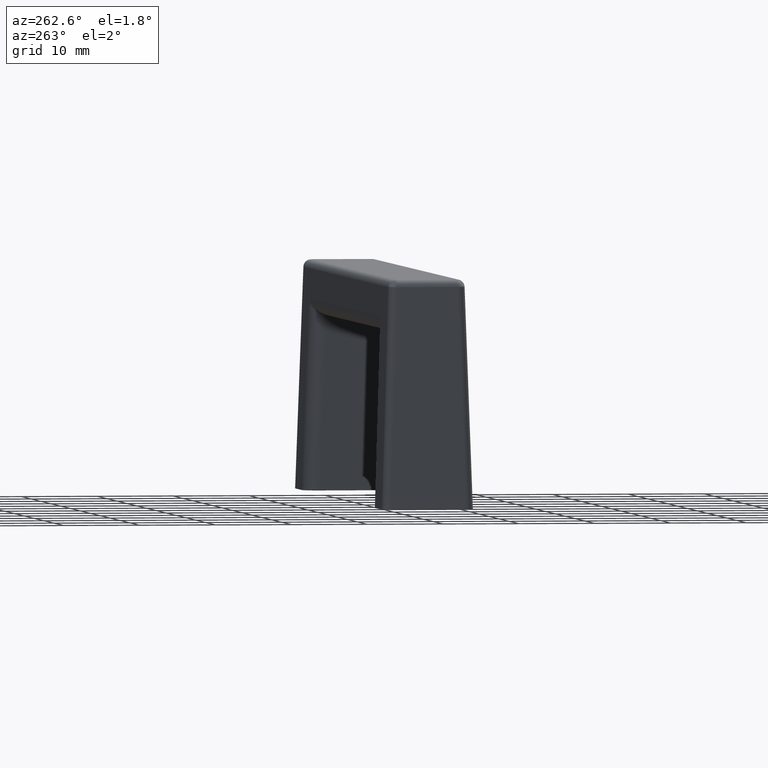
[diagram: clean part render]
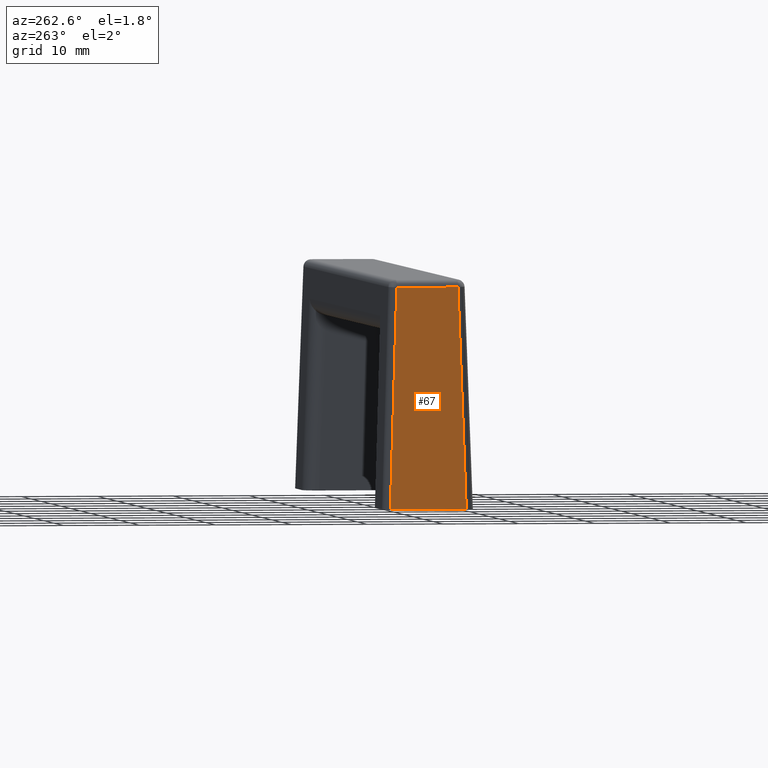
[diagram: same view with one face highlighted and labeled with its STEP entity id]
A machine part, auxiliary view. The second image highlights one B-rep face of the part: STEP entity #67.
In plain terms, the highlighted planar face has unit normal (-0.9994, 0, 0.0333).
Its self-contained STEP definition (entity closure, byte-faithful):
#67=ADVANCED_FACE('',(#345),#344,.T.);
#344=PLANE('',#602);
#345=FACE_OUTER_BOUND('',#603,.T.);
#599=CARTESIAN_POINT('',(-4.50967810533E+01,-6.00066615745E+00,-2.90333159764E+00));
#600=DIRECTION('',(-9.99444868772E-01,0.00000000000E+00,3.33159764405E-02));
#601=DIRECTION('',(3.33159764405E-02,0.00000000000E+00,9.99444868772E-01));
#602=AXIS2_PLACEMENT_3D('',#599,#600,#601);
#603=EDGE_LOOP('',(#754,#755,#756,#757));
#754=ORIENTED_EDGE('',*,*,#860,.T.);
#755=ORIENTED_EDGE('',*,*,#852,.T.);
#756=ORIENTED_EDGE('',*,*,#871,.T.);
#757=ORIENTED_EDGE('',*,*,#834,.T.);
#834=EDGE_CURVE('',#1092,#1106,#1113,.T.);
#852=EDGE_CURVE('',#1186,#1226,#1234,.T.);
#860=EDGE_CURVE('',#1106,#1186,#1285,.T.);
#871=EDGE_CURVE('',#1226,#1092,#1354,.T.);
#1092=VERTEX_POINT('',#1566);
#1106=VERTEX_POINT('',#1574);
#1113=LINE('',#1579,#1580);
#1186=VERTEX_POINT('',#1624);
#1226=VERTEX_POINT('',#1650);
#1234=LINE('',#1655,#1656);
#1285=LINE('',#1684,#1685);
#1354=LINE('',#1723,#1724);
#1566=CARTESIAN_POINT('',(-4.50000000000E+01,-5.00055513121E+00,0.00000000000E+00));
#1574=CARTESIAN_POINT('',(-4.40321894671E+01,-4.03254459612E+00,2.90333159764E+01));
#1579=CARTESIAN_POINT('',(-4.50000000000E+01,-5.00055513121E+00,0.00000000000E+00));
#1580=VECTOR('',#1581,2.90655661946E+01);
#1581=DIRECTION('',(3.32974945828E-02,3.33043756522E-02,9.98890432138E-01));
#1624=CARTESIAN_POINT('',(-4.40321894671E+01,4.03254459612E+00,2.90333159764E+01));
#1650=CARTESIAN_POINT('',(-4.50000000000E+01,5.00055513120E+00,0.00000000000E+00));
#1655=CARTESIAN_POINT('',(-4.40321894671E+01,4.03254459612E+00,2.90333159764E+01));
#1656=VECTOR('',#1657,2.90655661946E+01);
#1657=DIRECTION('',(-3.32974945828E-02,3.33043756522E-02,-9.98890432138E-01));
#1684=CARTESIAN_POINT('',(-4.40321894671E+01,-4.03254459612E+00,2.90333159764E+01));
#1685=VECTOR('',#1686,8.06508919223E+00);
#1686=DIRECTION('',(0.00000000000E+00,1.00000000000E+00,0.00000000000E+00));
#1723=CARTESIAN_POINT('',(-4.50000000000E+01,5.00055513120E+00,0.00000000000E+00));
#1724=VECTOR('',#1725,1.00011102624E+01);
#1725=DIRECTION('',(0.00000000000E+00,-1.00000000000E+00,0.00000000000E+00));